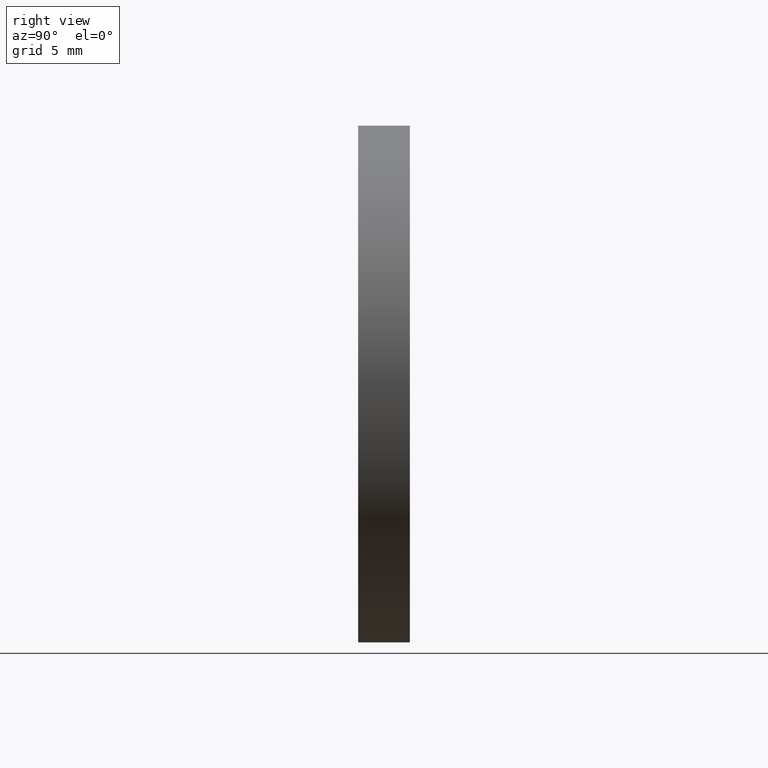
[diagram: clean part render]
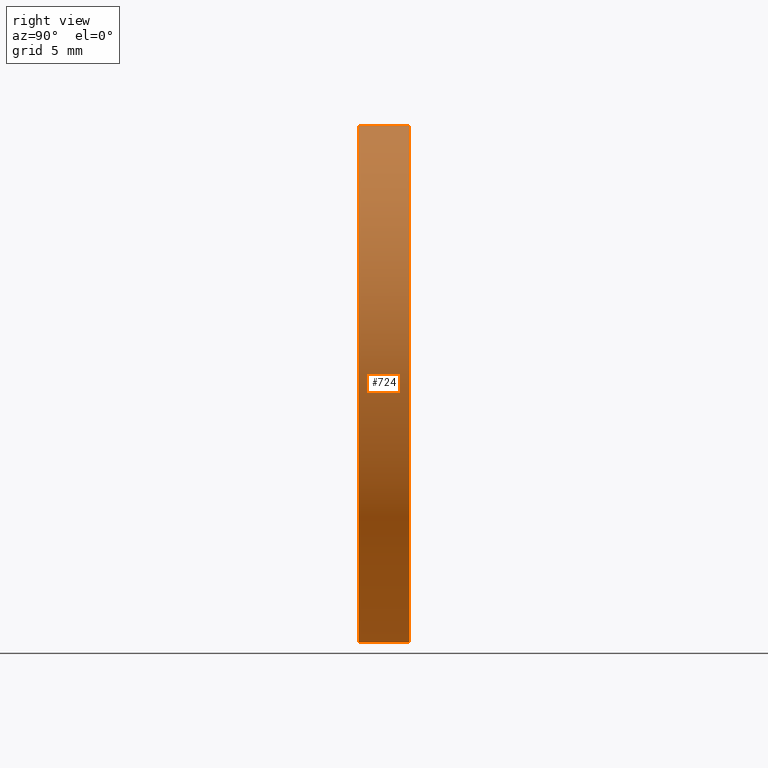
[diagram: same view with one face highlighted and labeled with its STEP entity id]
A machine part, right view. The second image highlights one B-rep face of the part: STEP entity #724.
In plain terms, the highlighted cylindrical surface (partial cylindrical patch) has radius 20 mm, axis along (-0, -1, -0).
Its self-contained STEP definition (entity closure, byte-faithful):
#231 = CIRCLE ( 'NONE', #7880, 20.00000000000000000 ) ;
#236 = ORIENTED_EDGE ( 'NONE', *, *, #9146, .T. ) ;
#272 = DIRECTION ( 'NONE',  ( 0.000000000000000000, 1.000000000000000000, 0.000000000000000000 ) ) ;
#484 = EDGE_CURVE ( 'NONE', #12709, #12246, #5215, .T. ) ;
#674 = VERTEX_POINT ( 'NONE', #4386 ) ;
#724 = ADVANCED_FACE ( 'NONE', ( #5359 ), #7763, .T. ) ;
#1402 = VECTOR ( 'NONE', #7855, 1000.000000000000000 ) ;
#1887 = VECTOR ( 'NONE', #8636, 1000.000000000000000 ) ;
#2168 = AXIS2_PLACEMENT_3D ( 'NONE', #12133, #6072, #13165 ) ;
#3662 = ORIENTED_EDGE ( 'NONE', *, *, #484, .F. ) ;
#3782 = ORIENTED_EDGE ( 'NONE', *, *, #7574, .F. ) ;
#3942 = DIRECTION ( 'NONE',  ( 0.000000000000000000, 0.000000000000000000, -1.000000000000000000 ) ) ;
#4386 = CARTESIAN_POINT ( 'NONE',  ( 2.449293598294706513E-15, -2.000000000000000000, 20.00000000000000000 ) ) ;
#4820 = CARTESIAN_POINT ( 'NONE',  ( 2.449293598294706513E-15, 2.000000000000000000, 20.00000000000000000 ) ) ;
#5215 = LINE ( 'NONE', #6737, #1402 ) ;
#5359 = FACE_OUTER_BOUND ( 'NONE', #10622, .T. ) ;
#5920 = DIRECTION ( 'NONE',  ( -0.000000000000000000, -1.000000000000000000, -0.000000000000000000 ) ) ;
#6072 = DIRECTION ( 'NONE',  ( 0.000000000000000000, 1.000000000000000000, 0.000000000000000000 ) ) ;
#6348 = CARTESIAN_POINT ( 'NONE',  ( 0.000000000000000000, -2.000000000000000000, 0.000000000000000000 ) ) ;
#6497 = VERTEX_POINT ( 'NONE', #4820 ) ;
#6582 = CIRCLE ( 'NONE', #2168, 20.00000000000000000 ) ;
#6607 = AXIS2_PLACEMENT_3D ( 'NONE', #6889, #5920, #3942 ) ;
#6737 = CARTESIAN_POINT ( 'NONE',  ( 0.000000000000000000, 2.000000000000000000, -20.00000000000000000 ) ) ;
#6889 = CARTESIAN_POINT ( 'NONE',  ( 0.000000000000000000, 2.000000000000000000, 0.000000000000000000 ) ) ;
#7364 = DIRECTION ( 'NONE',  ( 0.000000000000000000, 0.000000000000000000, 1.000000000000000000 ) ) ;
#7574 = EDGE_CURVE ( 'NONE', #6497, #12709, #6582, .T. ) ;
#7763 = CYLINDRICAL_SURFACE ( 'NONE', #6607, 20.00000000000000000 ) ;
#7855 = DIRECTION ( 'NONE',  ( -0.000000000000000000, -1.000000000000000000, -0.000000000000000000 ) ) ;
#7880 = AXIS2_PLACEMENT_3D ( 'NONE', #6348, #272, #7364 ) ;
#7918 = EDGE_CURVE ( 'NONE', #674, #12246, #231, .T. ) ;
#8636 = DIRECTION ( 'NONE',  ( -0.000000000000000000, -1.000000000000000000, -0.000000000000000000 ) ) ;
#8776 = CARTESIAN_POINT ( 'NONE',  ( 0.000000000000000000, 2.000000000000000000, -20.00000000000000000 ) ) ;
#9091 = CARTESIAN_POINT ( 'NONE',  ( 0.000000000000000000, -2.000000000000000000, -20.00000000000000000 ) ) ;
#9146 = EDGE_CURVE ( 'NONE', #6497, #674, #13156, .T. ) ;
#10544 = CARTESIAN_POINT ( 'NONE',  ( 2.449293598294706513E-15, 2.000000000000000000, 20.00000000000000000 ) ) ;
#10622 = EDGE_LOOP ( 'NONE', ( #3782, #236, #12681, #3662 ) ) ;
#12133 = CARTESIAN_POINT ( 'NONE',  ( 0.000000000000000000, 2.000000000000000000, 0.000000000000000000 ) ) ;
#12246 = VERTEX_POINT ( 'NONE', #9091 ) ;
#12681 = ORIENTED_EDGE ( 'NONE', *, *, #7918, .T. ) ;
#12709 = VERTEX_POINT ( 'NONE', #8776 ) ;
#13156 = LINE ( 'NONE', #10544, #1887 ) ;
#13165 = DIRECTION ( 'NONE',  ( 0.000000000000000000, 0.000000000000000000, 1.000000000000000000 ) ) ;